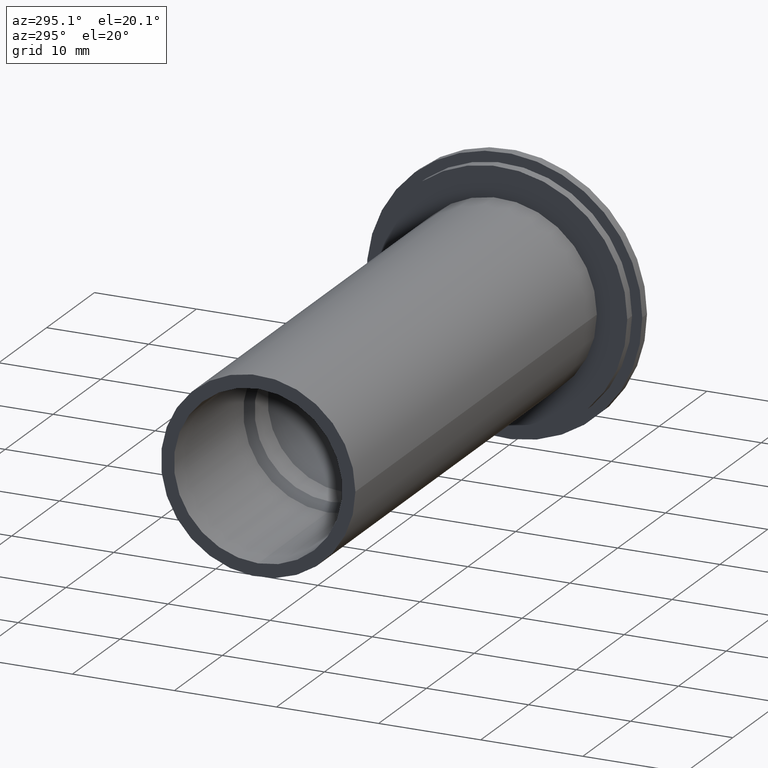
[diagram: clean part render]
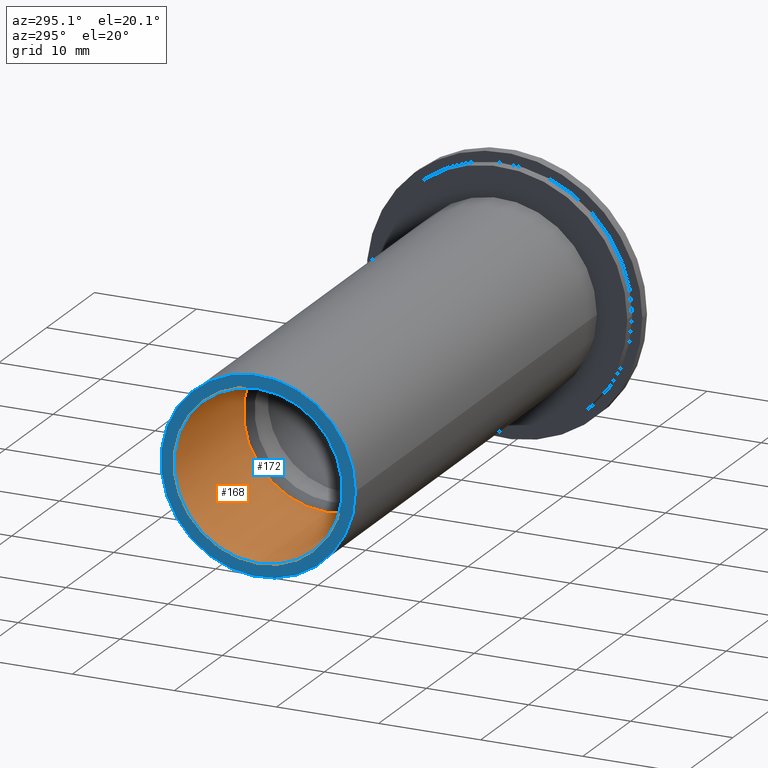
[diagram: same view with the hole feature highlighted: cylindrical wall and planar end face, labeled with their STEP entity ids]
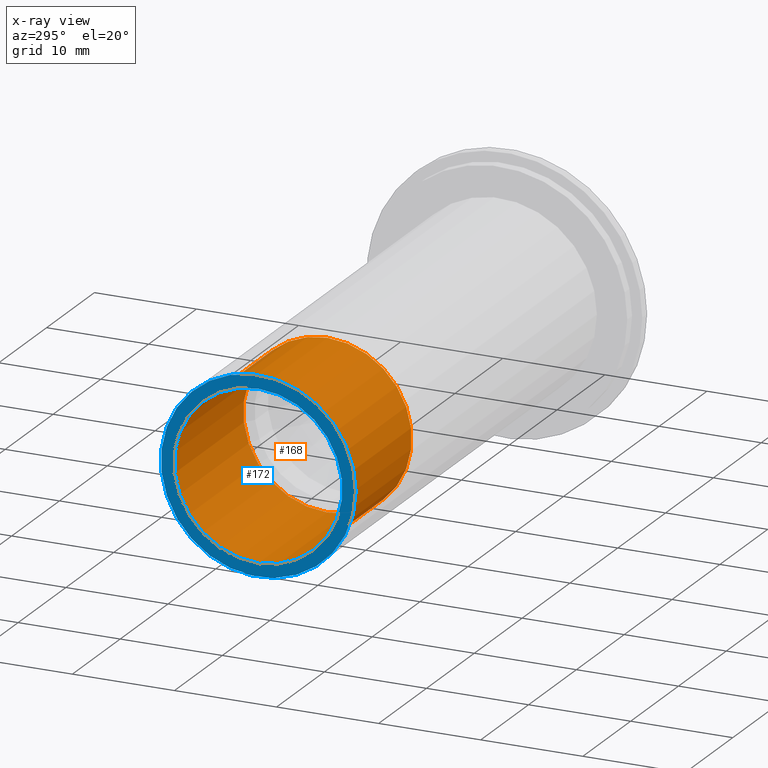
[diagram: x-ray of the same camera — body ghosted, the hole faces saturated]
A machine part, auxiliary view. The highlighted faces form one hole feature of diameter 16.5 mm: the cylindrical wall (entity #168, orange) and its adjacent planar end face (entity #172, blue) — they share a circular edge in the B-rep.
The next image is the same camera in x-ray (body ghosted, the hole faces saturated) — the bore reads through the body.
Wall:
#29=FACE_OUTER_BOUND('',#41,.T.);
#41=EDGE_LOOP('',(#134,#135,#136,#137));
#57=LINE('',#308,#65);
#65=VECTOR('',#254,8.25);
#74=CIRCLE('',#208,8.25);
#75=CIRCLE('',#210,8.25);
#87=VERTEX_POINT('',#302);
#88=VERTEX_POINT('',#306);
#103=EDGE_CURVE('',#87,#87,#74,.T.);
#105=EDGE_CURVE('',#88,#88,#75,.T.);
#106=EDGE_CURVE('',#88,#87,#57,.T.);
#134=ORIENTED_EDGE('',*,*,#105,.F.);
#135=ORIENTED_EDGE('',*,*,#106,.T.);
#136=ORIENTED_EDGE('',*,*,#103,.F.);
#137=ORIENTED_EDGE('',*,*,#106,.F.);
#160=CYLINDRICAL_SURFACE('',#209,8.25);
#168=ADVANCED_FACE('',(#29),#160,.F.);
#208=AXIS2_PLACEMENT_3D('',#303,#247,#248);
#209=AXIS2_PLACEMENT_3D('',#305,#250,#251);
#210=AXIS2_PLACEMENT_3D('',#307,#252,#253);
#247=DIRECTION('center_axis',(-1.,0.,0.));
#248=DIRECTION('ref_axis',(0.,0.,1.));
#250=DIRECTION('center_axis',(-1.,0.,0.));
#251=DIRECTION('ref_axis',(0.,0.,1.));
#252=DIRECTION('center_axis',(1.,0.,0.));
#253=DIRECTION('ref_axis',(0.,0.,1.));
#254=DIRECTION('',(1.,0.,0.));
#302=CARTESIAN_POINT('',(-38.,-1.01033360929657E-15,-8.25));
#303=CARTESIAN_POINT('Origin',(-38.,0.,0.));
#305=CARTESIAN_POINT('Origin',(-45.25,0.,0.));
#306=CARTESIAN_POINT('',(-52.5,-1.01033360929657E-15,-8.25));
#307=CARTESIAN_POINT('Origin',(-52.5,0.,0.));
#308=CARTESIAN_POINT('',(-45.25,-1.01033360929657E-15,-8.25));
End face:
#17=FACE_BOUND('',#48,.T.);
#21=PLANE('',#217);
#33=FACE_OUTER_BOUND('',#47,.T.);
#47=EDGE_LOOP('',(#146));
#48=EDGE_LOOP('',(#147));
#75=CIRCLE('',#210,8.25);
#79=CIRCLE('',#218,9.525);
#88=VERTEX_POINT('',#306);
#92=VERTEX_POINT('',#320);
#105=EDGE_CURVE('',#88,#88,#75,.T.);
#111=EDGE_CURVE('',#92,#92,#79,.T.);
#146=ORIENTED_EDGE('',*,*,#111,.F.);
#147=ORIENTED_EDGE('',*,*,#105,.T.);
#172=ADVANCED_FACE('',(#33,#17),#21,.T.);
#210=AXIS2_PLACEMENT_3D('',#307,#252,#253);
#217=AXIS2_PLACEMENT_3D('',#319,#268,#269);
#218=AXIS2_PLACEMENT_3D('',#321,#270,#271);
#252=DIRECTION('center_axis',(1.,0.,0.));
#253=DIRECTION('ref_axis',(0.,0.,1.));
#268=DIRECTION('center_axis',(-1.,0.,0.));
#269=DIRECTION('ref_axis',(0.,0.,1.));
#270=DIRECTION('center_axis',(1.,0.,0.));
#271=DIRECTION('ref_axis',(0.,0.,-1.));
#306=CARTESIAN_POINT('',(-52.5,-1.01033360929657E-15,-8.25));
#307=CARTESIAN_POINT('Origin',(-52.5,0.,0.));
#319=CARTESIAN_POINT('Origin',(-52.5,9.525,0.));
#320=CARTESIAN_POINT('',(-52.5,-9.525,-1.16647607618785E-15));
#321=CARTESIAN_POINT('Origin',(-52.5,0.,0.));